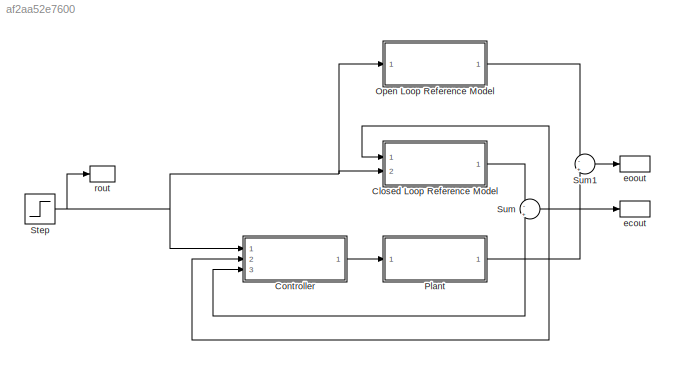
MODEL slx_af2aa52e7600
KIND model
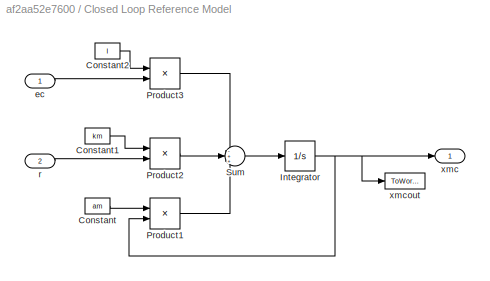
BLOCK [SubSystem] Closed Loop Reference Model
  FunctionWithSeparateData = off
  MaskHideContents = off
  MinAlgLoopOccurrences = off
  Opaque = off
  Ports = [2, 1]
  PropExecContextOutsideSubsystem = off
  RTWSystemCode = Auto
  RequestExecContextInheritance = off
BLOCK [Constant] Closed Loop Reference Model/Constant
  Value = am
BLOCK [Constant] Closed Loop Reference Model/Constant1
  Value = km
BLOCK [Constant] Closed Loop Reference Model/Constant2
  Value = l
BLOCK [Integrator] Closed Loop Reference Model/Integrator
  Ports = [1, 1]
BLOCK [Product] Closed Loop Reference Model/Product1
  InputSameDT = off
  OutDataTypeStr = Inherit: Inherit via internal rule
  Ports = [2, 1]
  SaturateOnIntegerOverflow = off
BLOCK [Product] Closed Loop Reference Model/Product2
  InputSameDT = off
  OutDataTypeStr = Inherit: Inherit via internal rule
  Ports = [2, 1]
  SaturateOnIntegerOverflow = off
BLOCK [Product] Closed Loop Reference Model/Product3
  InputSameDT = off
  OutDataTypeStr = Inherit: Inherit via internal rule
  Ports = [2, 1]
  SaturateOnIntegerOverflow = off
BLOCK [Sum] Closed Loop Reference Model/Sum
  IconShape = round
  InputSameDT = off
  Inputs = -++
  OutDataTypeStr = Inherit: Inherit via internal rule
  Ports = [3, 1]
  SaturateOnIntegerOverflow = off
BLOCK [Inport] Closed Loop Reference Model/ec
  IconDisplay = Port number
BLOCK [Inport] Closed Loop Reference Model/r
  IconDisplay = Port number
  Port = 2
BLOCK [Outport] Closed Loop Reference Model/xmc
  IconDisplay = Port number
BLOCK [ToWorkspace] Closed Loop Reference Model/xmcout
  MaxDataPoints = inf
  Ports = [1]
  SampleTime = -1
  SaveFormat = Structure With Time
  VariableName = xmcout
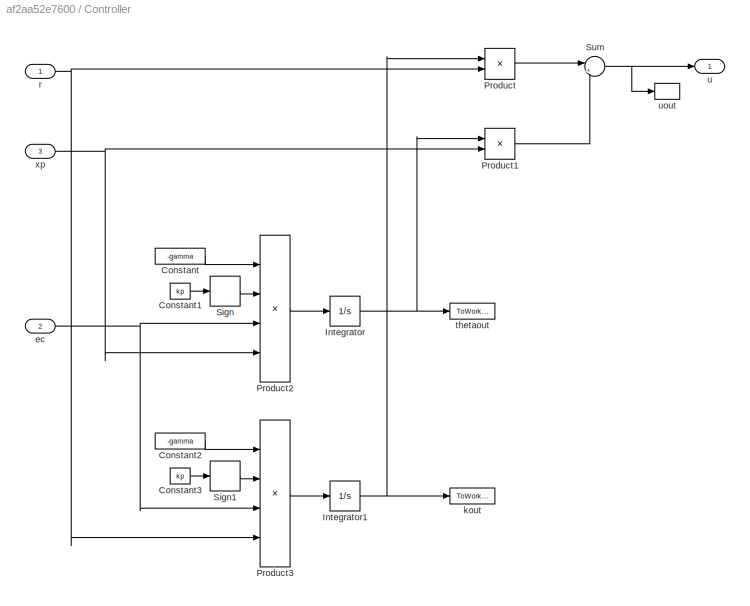
BLOCK [SubSystem] Controller
  FunctionWithSeparateData = off
  MaskHideContents = off
  MinAlgLoopOccurrences = off
  Opaque = off
  Ports = [3, 1]
  PropExecContextOutsideSubsystem = off
  RTWSystemCode = Auto
  RequestExecContextInheritance = off
BLOCK [Constant] Controller/Constant
  Value = -gamma
BLOCK [Constant] Controller/Constant1
  Value = kp
BLOCK [Constant] Controller/Constant2
  Value = -gamma
BLOCK [Constant] Controller/Constant3
  Value = kp
BLOCK [Integrator] Controller/Integrator
  Ports = [1, 1]
BLOCK [Integrator] Controller/Integrator1
  Ports = [1, 1]
BLOCK [Product] Controller/Product
  InputSameDT = off
  OutDataTypeStr = Inherit: Inherit via internal rule
  Ports = [2, 1]
  SaturateOnIntegerOverflow = off
BLOCK [Product] Controller/Product1
  InputSameDT = off
  OutDataTypeStr = Inherit: Inherit via internal rule
  Ports = [2, 1]
  SaturateOnIntegerOverflow = off
BLOCK [Product] Controller/Product2
  InputSameDT = off
  Inputs = 4
  OutDataTypeStr = Inherit: Inherit via internal rule
  Ports = [4, 1]
  SaturateOnIntegerOverflow = off
BLOCK [Product] Controller/Product3
  InputSameDT = off
  Inputs = 4
  OutDataTypeStr = Inherit: Inherit via internal rule
  Ports = [4, 1]
  SaturateOnIntegerOverflow = off
BLOCK [Signum] Controller/Sign
BLOCK [Signum] Controller/Sign1
BLOCK [Sum] Controller/Sum
  IconShape = round
  InputSameDT = off
  Inputs = |++
  OutDataTypeStr = Inherit: Inherit via internal rule
  Ports = [2, 1]
  SaturateOnIntegerOverflow = off
BLOCK [Inport] Controller/ec
  IconDisplay = Port number
  Port = 2
BLOCK [ToWorkspace] Controller/kout
  MaxDataPoints = inf
  Ports = [1]
  SampleTime = -1
  SaveFormat = Structure With Time
  VariableName = kout
BLOCK [Inport] Controller/r
  IconDisplay = Port number
BLOCK [ToWorkspace] Controller/thetaout
  MaxDataPoints = inf
  Ports = [1]
  SampleTime = -1
  SaveFormat = Structure With Time
  VariableName = thetaout
BLOCK [Outport] Controller/u
  IconDisplay = Port number
BLOCK [ToWorkspace] Controller/uout
  MaxDataPoints = inf
  Ports = [1]
  SampleTime = -1
  SaveFormat = Structure With Time
  VariableName = uout
BLOCK [Inport] Controller/xp
  IconDisplay = Port number
  Port = 3
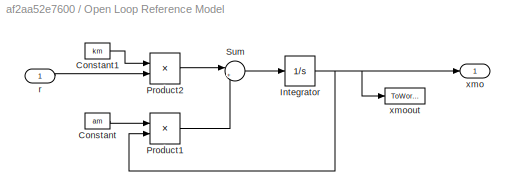
BLOCK [SubSystem] Open Loop Reference Model
  FunctionWithSeparateData = off
  MaskHideContents = off
  MinAlgLoopOccurrences = off
  Opaque = off
  Ports = [1, 1]
  PropExecContextOutsideSubsystem = off
  RTWSystemCode = Auto
  RequestExecContextInheritance = off
BLOCK [Constant] Open Loop Reference Model/Constant
  Value = am
BLOCK [Constant] Open Loop Reference Model/Constant1
  Value = km
BLOCK [Integrator] Open Loop Reference Model/Integrator
  Ports = [1, 1]
BLOCK [Product] Open Loop Reference Model/Product1
  InputSameDT = off
  OutDataTypeStr = Inherit: Inherit via internal rule
  Ports = [2, 1]
  SaturateOnIntegerOverflow = off
BLOCK [Product] Open Loop Reference Model/Product2
  InputSameDT = off
  OutDataTypeStr = Inherit: Inherit via internal rule
  Ports = [2, 1]
  SaturateOnIntegerOverflow = off
BLOCK [Sum] Open Loop Reference Model/Sum
  IconShape = round
  InputSameDT = off
  Inputs = |++
  OutDataTypeStr = Inherit: Inherit via internal rule
  Ports = [2, 1]
  SaturateOnIntegerOverflow = off
BLOCK [Inport] Open Loop Reference Model/r
  IconDisplay = Port number
BLOCK [Outport] Open Loop Reference Model/xmo
  IconDisplay = Port number
BLOCK [ToWorkspace] Open Loop Reference Model/xmoout
  MaxDataPoints = inf
  Ports = [1]
  SampleTime = -1
  SaveFormat = Structure With Time
  VariableName = xmoout
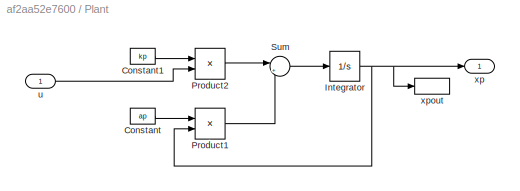
BLOCK [SubSystem] Plant
  FunctionWithSeparateData = off
  MaskHideContents = off
  MinAlgLoopOccurrences = off
  Opaque = off
  Ports = [1, 1]
  PropExecContextOutsideSubsystem = off
  RTWSystemCode = Auto
  RequestExecContextInheritance = off
BLOCK [Constant] Plant/Constant
  Value = ap
BLOCK [Constant] Plant/Constant1
  Value = kp
BLOCK [Integrator] Plant/Integrator
  Ports = [1, 1]
BLOCK [Product] Plant/Product1
  InputSameDT = off
  OutDataTypeStr = Inherit: Inherit via internal rule
  Ports = [2, 1]
  SaturateOnIntegerOverflow = off
BLOCK [Product] Plant/Product2
  InputSameDT = off
  OutDataTypeStr = Inherit: Inherit via internal rule
  Ports = [2, 1]
  SaturateOnIntegerOverflow = off
BLOCK [Sum] Plant/Sum
  IconShape = round
  InputSameDT = off
  Inputs = |++
  OutDataTypeStr = Inherit: Inherit via internal rule
  Ports = [2, 1]
  SaturateOnIntegerOverflow = off
BLOCK [Inport] Plant/u
  IconDisplay = Port number
BLOCK [Outport] Plant/xp
  IconDisplay = Port number
BLOCK [ToWorkspace] Plant/xpout
  MaxDataPoints = inf
  Ports = [1]
  SampleTime = -1
  SaveFormat = Structure With Time
  VariableName = xpout
BLOCK [Step] Step
  SampleTime = 0
  Time = 5
BLOCK [Sum] Sum
  IconShape = round
  InputSameDT = off
  Inputs = -|+
  OutDataTypeStr = Inherit: Inherit via internal rule
  Ports = [2, 1]
  SaturateOnIntegerOverflow = off
BLOCK [Sum] Sum1
  IconShape = round
  InputSameDT = off
  Inputs = -|+
  OutDataTypeStr = Inherit: Inherit via internal rule
  Ports = [2, 1]
  SaturateOnIntegerOverflow = off
BLOCK [ToWorkspace] ecout
  MaxDataPoints = inf
  Ports = [1]
  SampleTime = -1
  SaveFormat = Structure With Time
  VariableName = ecout
BLOCK [ToWorkspace] eoout
  MaxDataPoints = inf
  Ports = [1]
  SampleTime = -1
  SaveFormat = Structure With Time
  VariableName = eoout
BLOCK [ToWorkspace] rout
  MaxDataPoints = inf
  Ports = [1]
  SampleTime = -1
  SaveFormat = Structure With Time
  VariableName = rout
LINE Closed Loop Reference Model/Constant1:1 -> Closed Loop Reference Model/Product2:1
LINE Closed Loop Reference Model/Constant2:1 -> Closed Loop Reference Model/Product3:1
LINE Closed Loop Reference Model/Constant:1 -> Closed Loop Reference Model/Product1:1
NET Closed Loop Reference Model/Integrator:1 -> Closed Loop Reference Model/Product1:2, Closed Loop Reference Model/xmc:1, Closed Loop Reference Model/xmcout:1
LINE Closed Loop Reference Model/Product1:1 -> Closed Loop Reference Model/Sum:3
LINE Closed Loop Reference Model/Product2:1 -> Closed Loop Reference Model/Sum:2
LINE Closed Loop Reference Model/Product3:1 -> Closed Loop Reference Model/Sum:1
LINE Closed Loop Reference Model/Sum:1 -> Closed Loop Reference Model/Integrator:1
LINE Closed Loop Reference Model/ec:1 -> Closed Loop Reference Model/Product3:2
LINE Closed Loop Reference Model/r:1 -> Closed Loop Reference Model/Product2:2
LINE Closed Loop Reference Model:1 -> Sum:1
LINE Controller/Constant1:1 -> Controller/Sign:1
LINE Controller/Constant2:1 -> Controller/Product3:1
LINE Controller/Constant3:1 -> Controller/Sign1:1
LINE Controller/Constant:1 -> Controller/Product2:1
NET Controller/Integrator1:1 -> Controller/Product:1, Controller/kout:1
NET Controller/Integrator:1 -> Controller/Product1:1, Controller/thetaout:1
LINE Controller/Product1:1 -> Controller/Sum:2
LINE Controller/Product2:1 -> Controller/Integrator:1
LINE Controller/Product3:1 -> Controller/Integrator1:1
LINE Controller/Product:1 -> Controller/Sum:1
LINE Controller/Sign1:1 -> Controller/Product3:2
LINE Controller/Sign:1 -> Controller/Product2:2
NET Controller/Sum:1 -> Controller/u:1, Controller/uout:1
NET Controller/ec:1 -> Controller/Product2:3, Controller/Product3:3
NET Controller/r:1 -> Controller/Product3:4, Controller/Product:2
NET Controller/xp:1 -> Controller/Product1:2, Controller/Product2:4
LINE Controller:1 -> Plant:1
LINE Open Loop Reference Model/Constant1:1 -> Open Loop Reference Model/Product2:1
LINE Open Loop Reference Model/Constant:1 -> Open Loop Reference Model/Product1:1
NET Open Loop Reference Model/Integrator:1 -> Open Loop Reference Model/Product1:2, Open Loop Reference Model/xmo:1, Open Loop Reference Model/xmoout:1
LINE Open Loop Reference Model/Product1:1 -> Open Loop Reference Model/Sum:2
LINE Open Loop Reference Model/Product2:1 -> Open Loop Reference Model/Sum:1
LINE Open Loop Reference Model/Sum:1 -> Open Loop Reference Model/Integrator:1
LINE Open Loop Reference Model/r:1 -> Open Loop Reference Model/Product2:2
LINE Open Loop Reference Model:1 -> Sum1:1
LINE Plant/Constant1:1 -> Plant/Product2:1
LINE Plant/Constant:1 -> Plant/Product1:1
NET Plant/Integrator:1 -> Plant/Product1:2, Plant/xp:1, Plant/xpout:1
LINE Plant/Product1:1 -> Plant/Sum:2
LINE Plant/Product2:1 -> Plant/Sum:1
LINE Plant/Sum:1 -> Plant/Integrator:1
LINE Plant/u:1 -> Plant/Product2:2
NET Plant:1 -> Controller:3, Sum1:2, Sum:2
NET Step:1 -> Closed Loop Reference Model:2, Controller:1, Open Loop Reference Model:1, rout:1
LINE Sum1:1 -> eoout:1
NET Sum:1 -> Closed Loop Reference Model:1, Controller:2, ecout:1
note: NET lines group one-source signal fan-out (src -> all destinations, sorted); 1:1 wires keep LINE
